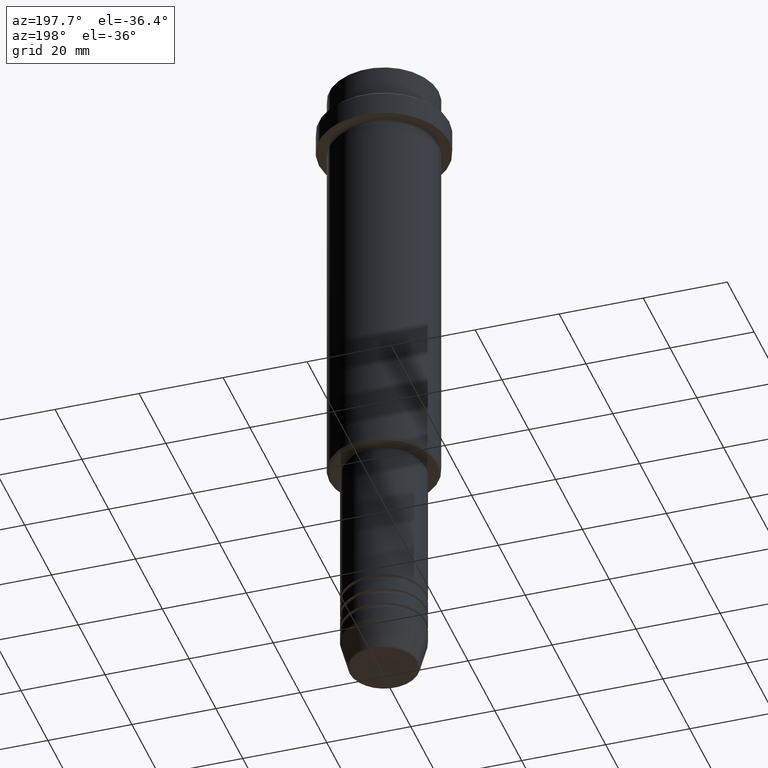
[diagram: clean part render]
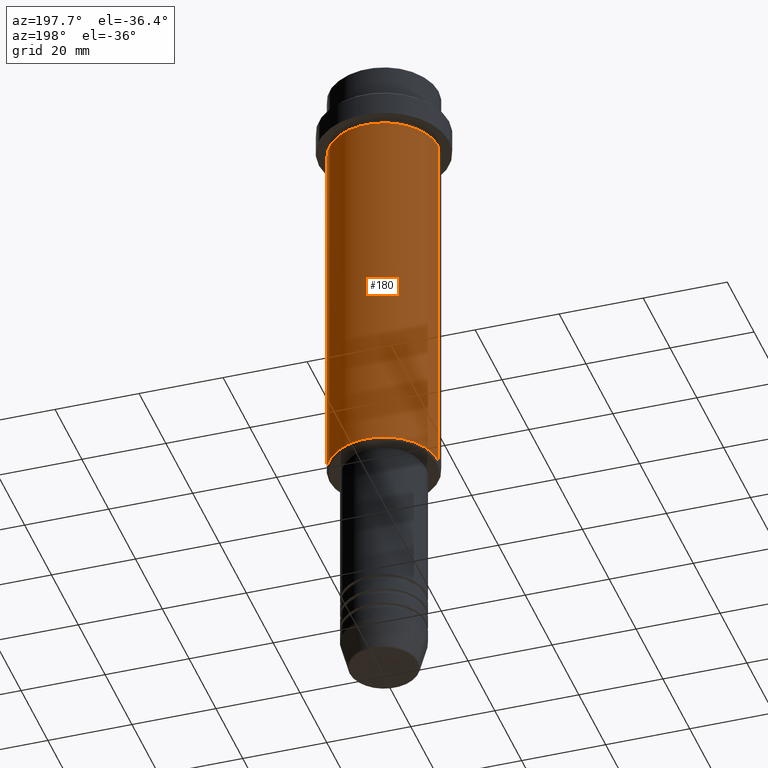
[diagram: same view with one face highlighted and labeled with its STEP entity id]
A machine part, auxiliary view. The second image highlights one B-rep face of the part: STEP entity #180.
In plain terms, the highlighted cylindrical surface (partial cylindrical patch) has radius 13 mm, axis along (-0, -0, 1).
Its self-contained STEP definition (entity closure, byte-faithful):
#14 = AXIS2_PLACEMENT_3D ( 'NONE', #48, #159, #592 ) ;
#48 = CARTESIAN_POINT ( 'NONE',  ( 0.000000000000000000, 0.000000000000000000, 0.000000000000000000 ) ) ;
#100 = ORIENTED_EDGE ( 'NONE', *, *, #1220, .F. ) ;
#130 = CARTESIAN_POINT ( 'NONE',  ( 13.00000000000000000, 0.000000000000000000, -16.00000000000000000 ) ) ;
#147 = CARTESIAN_POINT ( 'NONE',  ( -13.00000000000000000, 1.592040838891559095E-15, -16.00000000000000000 ) ) ;
#159 = DIRECTION ( 'NONE',  ( -0.000000000000000000, -0.000000000000000000, 1.000000000000000000 ) ) ;
#180 = ADVANCED_FACE ( 'NONE', ( #687 ), #1124, .T. ) ;
#208 = DIRECTION ( 'NONE',  ( -0.000000000000000000, -0.000000000000000000, 1.000000000000000000 ) ) ;
#230 = CARTESIAN_POINT ( 'NONE',  ( 13.00000000000000000, 0.000000000000000000, -104.5000000000000284 ) ) ;
#353 = DIRECTION ( 'NONE',  ( 1.000000000000000000, 0.000000000000000000, 0.000000000000000000 ) ) ;
#393 = VERTEX_POINT ( 'NONE', #130 ) ;
#414 = CARTESIAN_POINT ( 'NONE',  ( -13.00000000000000000, 1.592040838891559095E-15, -104.5000000000000284 ) ) ;
#512 = DIRECTION ( 'NONE',  ( -0.000000000000000000, -0.000000000000000000, 1.000000000000000000 ) ) ;
#535 = VERTEX_POINT ( 'NONE', #147 ) ;
#562 = DIRECTION ( 'NONE',  ( -0.000000000000000000, -0.000000000000000000, 1.000000000000000000 ) ) ;
#592 = DIRECTION ( 'NONE',  ( 1.000000000000000000, 0.000000000000000000, 0.000000000000000000 ) ) ;
#619 = CARTESIAN_POINT ( 'NONE',  ( 13.00000000000000000, 0.000000000000000000, 0.000000000000000000 ) ) ;
#687 = FACE_OUTER_BOUND ( 'NONE', #1313, .T. ) ;
#688 = EDGE_CURVE ( 'NONE', #864, #393, #1171, .T. ) ;
#819 = CIRCLE ( 'NONE', #1137, 13.00000000000000000 ) ;
#852 = CARTESIAN_POINT ( 'NONE',  ( 0.000000000000000000, 0.000000000000000000, -104.5000000000000284 ) ) ;
#864 = VERTEX_POINT ( 'NONE', #230 ) ;
#946 = EDGE_CURVE ( 'NONE', #864, #961, #953, .T. ) ;
#950 = ORIENTED_EDGE ( 'NONE', *, *, #946, .T. ) ;
#953 = CIRCLE ( 'NONE', #991, 13.00000000000000000 ) ;
#961 = VERTEX_POINT ( 'NONE', #414 ) ;
#974 = ORIENTED_EDGE ( 'NONE', *, *, #1073, .T. ) ;
#991 = AXIS2_PLACEMENT_3D ( 'NONE', #852, #208, #1054 ) ;
#1054 = DIRECTION ( 'NONE',  ( -1.000000000000000000, 0.000000000000000000, 0.000000000000000000 ) ) ;
#1065 = LINE ( 'NONE', #1237, #1412 ) ;
#1073 = EDGE_CURVE ( 'NONE', #961, #535, #1065, .T. ) ;
#1114 = CARTESIAN_POINT ( 'NONE',  ( 0.000000000000000000, 0.000000000000000000, -16.00000000000000000 ) ) ;
#1124 = CYLINDRICAL_SURFACE ( 'NONE', #14, 13.00000000000000000 ) ;
#1125 = DIRECTION ( 'NONE',  ( -0.000000000000000000, -0.000000000000000000, 1.000000000000000000 ) ) ;
#1127 = ORIENTED_EDGE ( 'NONE', *, *, #688, .F. ) ;
#1137 = AXIS2_PLACEMENT_3D ( 'NONE', #1114, #562, #353 ) ;
#1171 = LINE ( 'NONE', #619, #1390 ) ;
#1220 = EDGE_CURVE ( 'NONE', #393, #535, #819, .T. ) ;
#1237 = CARTESIAN_POINT ( 'NONE',  ( -13.00000000000000000, 1.592040838891559095E-15, 0.000000000000000000 ) ) ;
#1313 = EDGE_LOOP ( 'NONE', ( #950, #974, #100, #1127 ) ) ;
#1390 = VECTOR ( 'NONE', #512, 1000.000000000000000 ) ;
#1412 = VECTOR ( 'NONE', #1125, 1000.000000000000000 ) ;